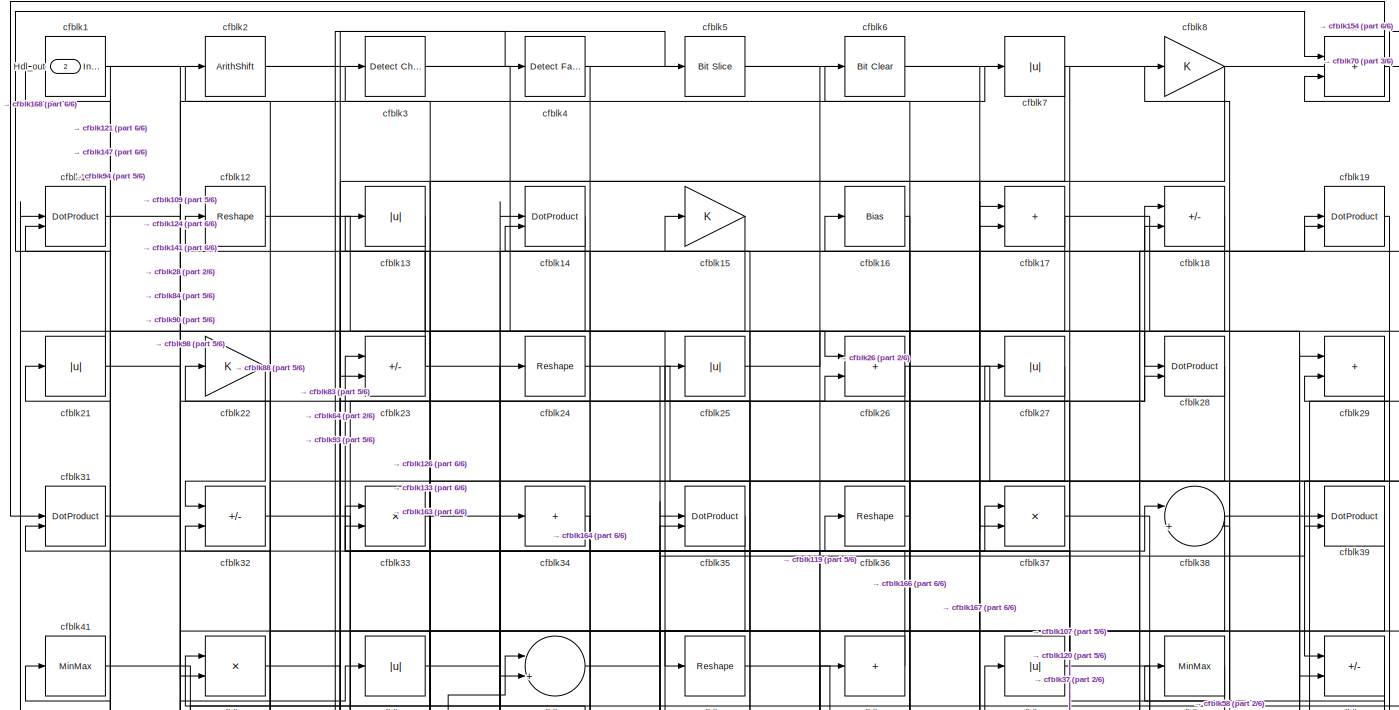
[diagram: root canvas - part 1/6, full width, top band]
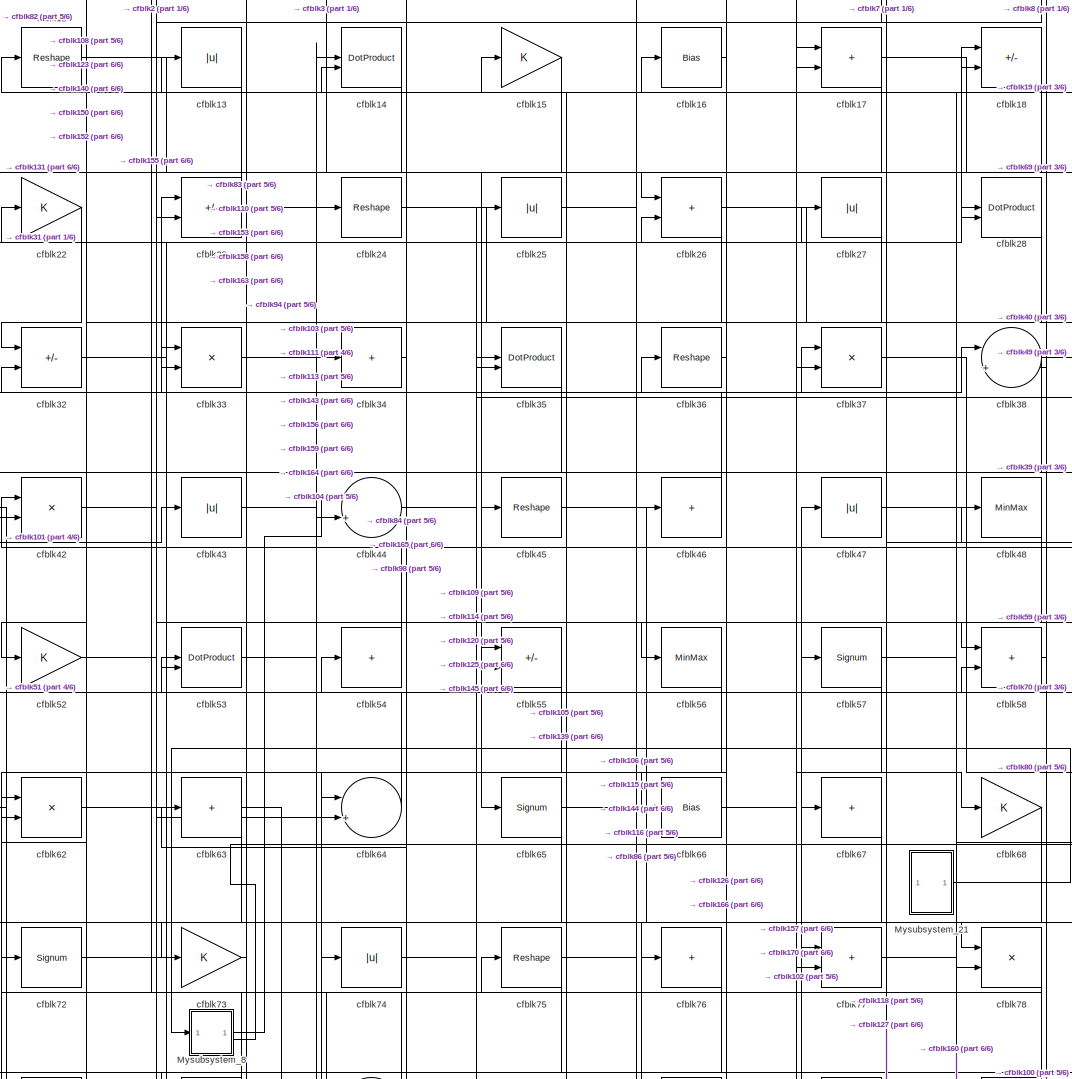
[diagram: root canvas - part 2/6, top center region]
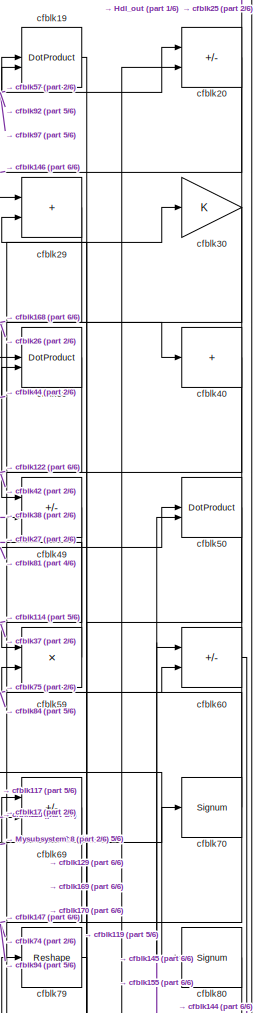
[diagram: root canvas - part 3/6, top right region]
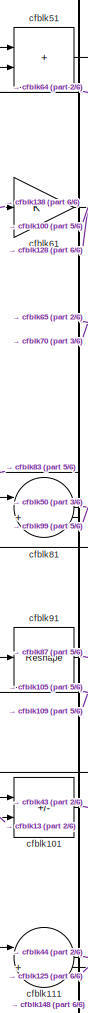
[diagram: root canvas - part 4/6, middle left region]
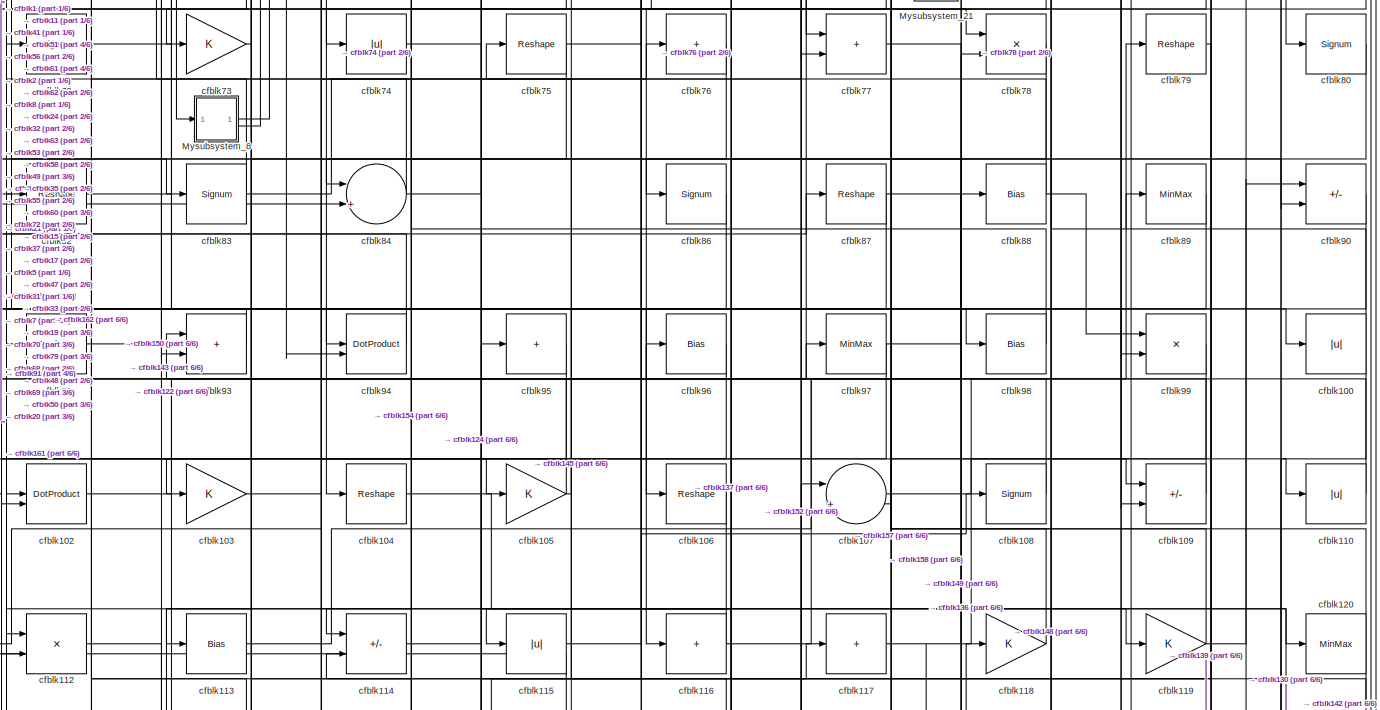
[diagram: root canvas - part 5/6, full width, middle band]
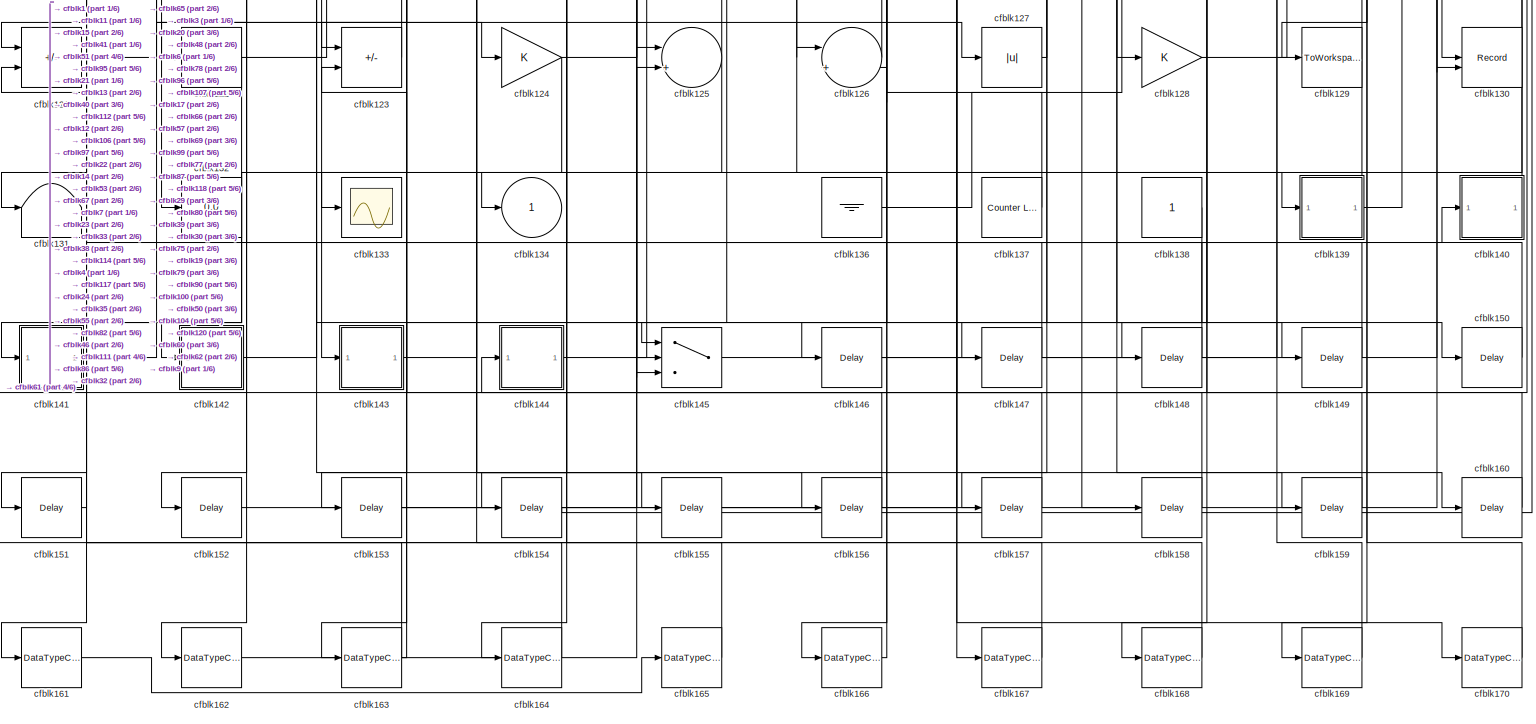
[diagram: root canvas - part 6/6, full width, bottom band]
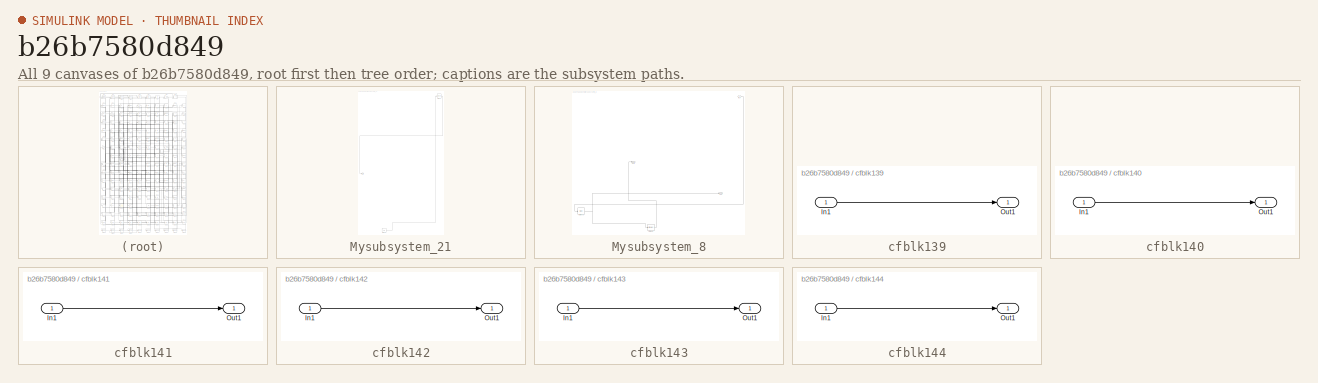
[diagram: thumbnail index - all 9 canvases of the model, root first then tree order]
MODEL slx_b26b7580d849
KIND model
CONFIG AbsTol = auto
CONFIG EnableMultiTasking = off
CONFIG FixedStep = auto
CONFIG MaxStep = auto
CONFIG MinStep = auto
CONFIG RelTol = 1e-3
CONFIG SampleTimeConstraint = Unconstrained
CONFIG SolverName = VariableStepAuto
CONFIG StartTime = 0.0
CONFIG StopTime = 10.0
BLOCK [Outport] Hdl_out
  OutDataTypeStr = uint8
  Port = 2
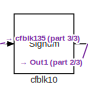
[diagram: Mysubsystem_21 - part 1/3, top right region]
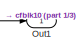
[diagram: Mysubsystem_21 - part 2/3, middle left region]
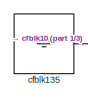
[diagram: Mysubsystem_21 - part 3/3, bottom left region]
BLOCK [SubSystem] Mysubsystem_21
  RTWFcnName = Mysubsystem_21
  RTWFcnNameOpts = User specified
  RTWFileNameOpts = Use function name
  RTWSystemCode = Reusable function
  TreatAsAtomicUnit = on
BLOCK [Outport] Mysubsystem_21/Out1
BLOCK [Signum] Mysubsystem_21/cfblk10
BLOCK [Ground] Mysubsystem_21/cfblk135
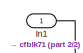
[diagram: Mysubsystem_8 - part 1/2, top right region]
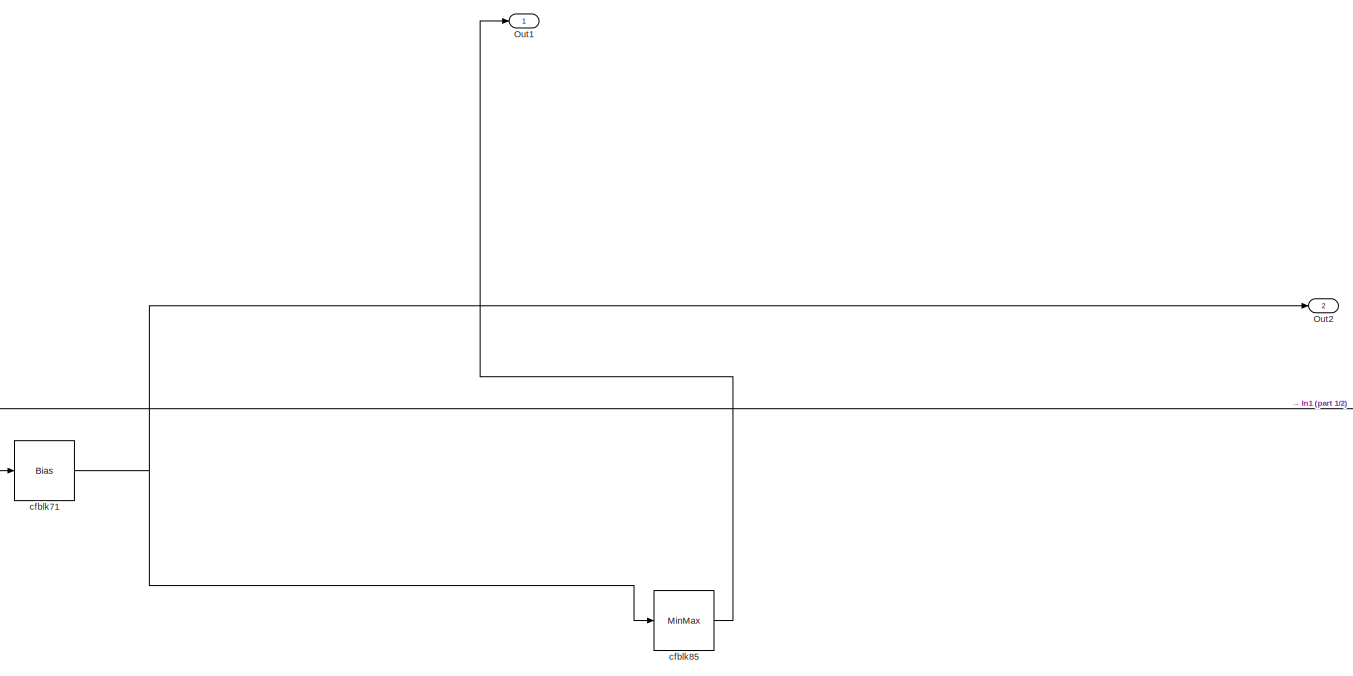
[diagram: Mysubsystem_8 - part 2/2, full width, bottom band]
BLOCK [SubSystem] Mysubsystem_8
  RTWFcnName = Mysubsystem_8
  RTWFcnNameOpts = User specified
  RTWFileNameOpts = Use function name
  RTWSystemCode = Reusable function
  TreatAsAtomicUnit = on
BLOCK [Inport] Mysubsystem_8/In1
BLOCK [Outport] Mysubsystem_8/Out1
BLOCK [Outport] Mysubsystem_8/Out2
  Port = 2
BLOCK [Bias] Mysubsystem_8/cfblk71
  Bias = 0.0
  SaturateOnIntegerOverflow = off
BLOCK [MinMax] Mysubsystem_8/cfblk85
BLOCK [Reference] cfblk1  REF=simulink/Logic and Bit
Operations/Detect
Increase
  LibrarySourceBlock = hdlsllib/Logic and Bit\nOperations/Detect\nIncrease
  SourceBlock = simulink/Logic and Bit\nOperations/Detect\nIncrease
  SourceType = Detect Increase
BLOCK [Abs] cfblk100
  OutDataTypeStr = uint8
  SaturateOnIntegerOverflow = off
BLOCK [Sum] cfblk101
  IconShape = rectangular
  Inputs = +-
  OutDataTypeStr = uint8
BLOCK [DotProduct] cfblk102
  OutDataTypeStr = uint8
BLOCK [Gain] cfblk103
  OutDataTypeStr = uint8
BLOCK [Reshape] cfblk104
BLOCK [Gain] cfblk105
  OutDataTypeStr = uint8
BLOCK [Reshape] cfblk106
BLOCK [Sum] cfblk107
  Inputs = |++
  OutDataTypeStr = uint8
BLOCK [Signum] cfblk108
BLOCK [Sum] cfblk109
  IconShape = rectangular
  Inputs = +-
  OutDataTypeStr = uint8
BLOCK [DotProduct] cfblk11
  OutDataTypeStr = uint8
BLOCK [Abs] cfblk110
  OutDataTypeStr = uint8
  SaturateOnIntegerOverflow = off
BLOCK [Sum] cfblk111
  Inputs = |++
  OutDataTypeStr = uint8
BLOCK [Product] cfblk112
  Inputs = */
  OutDataTypeStr = uint8
  RndMeth = Zero
  SaturateOnIntegerOverflow = on
BLOCK [Bias] cfblk113
  Bias = 0.0
  SaturateOnIntegerOverflow = off
BLOCK [Sum] cfblk114
  IconShape = rectangular
  Inputs = +-
  OutDataTypeStr = uint8
BLOCK [Abs] cfblk115
  OutDataTypeStr = uint8
  SaturateOnIntegerOverflow = off
BLOCK [Sum] cfblk116
  IconShape = rectangular
  Inputs = +
  OutDataTypeStr = uint8
BLOCK [Sum] cfblk117
  IconShape = rectangular
  Inputs = +
  OutDataTypeStr = uint8
BLOCK [Gain] cfblk118
  OutDataTypeStr = uint8
BLOCK [Gain] cfblk119
  OutDataTypeStr = uint8
BLOCK [Reshape] cfblk12
BLOCK [MinMax] cfblk120
  OutDataTypeStr = uint8
BLOCK [Sum] cfblk121
  IconShape = rectangular
  Inputs = +-
  OutDataTypeStr = uint8
BLOCK [Sum] cfblk122
  IconShape = rectangular
  Inputs = +
  OutDataTypeStr = uint8
BLOCK [Sum] cfblk123
  IconShape = rectangular
  Inputs = +-
  OutDataTypeStr = uint8
BLOCK [Gain] cfblk124
  OutDataTypeStr = uint8
BLOCK [Sum] cfblk125
  Inputs = |++
  OutDataTypeStr = uint8
BLOCK [Sum] cfblk126
  Inputs = |++
  OutDataTypeStr = uint8
BLOCK [Abs] cfblk127
  OutDataTypeStr = uint8
  SaturateOnIntegerOverflow = off
BLOCK [Gain] cfblk128
  OutDataTypeStr = uint8
BLOCK [ToWorkspace] cfblk129
  MaxDataPoints = inf
  SampleTime = -1
  SaveFormat = Timeseries
  VariableName = simout
BLOCK [Abs] cfblk13
  OutDataTypeStr = uint8
  SaturateOnIntegerOverflow = off
BLOCK [Record] cfblk130
  CompatibilityTag = XY
  FileSettingsInternal = {"entries":[{"content":{"excelSettings":{"content":{},"type":"Streamout.ExcelSettings"}},"type":"Streamout.FileSettingStorage","uuid":""}],"packageUris":["http:\/\/schema.mathworks.com\/mf0\/streamout_blocks\/R2020a"],"version":"1.0"}
  Layout = [1 1]
  SignalsInternal = {"entries":[{"content":{"signals":[{"content":{"blockPath":[],"dimensions":[1],"domain":"","lineColor":"#a2142f","plots":[1],"port":1,"signalID":35386,"signalName":"cfblk104"},"type":"RecordBlkView.Signal","uuid":""},{"content":{"blockPath":[],"dimensions":[1],"domain":"","lineColor":"#139fff","plots":[1],"port":2,"signalID":35389,"signalName":"cfblk100"},"type":"RecordBlkView.Signal","uuid":""}]}...<+144ch>
  VisualizationBindings = {"xyplotplugin":{"info":[{"series":[{"bindingParametersList":[{"parameter":"X-Axis","signalID":35386,"signalName":"cfblk104"},{"parameter":"Y-Axis","signalID":35389,"signalName":"cfblk100"}],"seriesID":47737}],"subplotID":1}]}}
  st = -1
BLOCK [Terminator] cfblk131
BLOCK [Display] cfblk132
  Decimation = 1
BLOCK [Scope] cfblk133
  Floating = off
  NumInputPorts = 1
  ScopeSpecificationString = Simulink.scopes.TimeScopeBlockCfg('CurrentConfiguration', extmgr.ConfigurationSet(extmgr.Configuration('Core','General UI',true),extmgr.Configuration('Core','Source UI',true),extmgr.Configuration('Sources','WiredSimulink',true,'DataLoggingVariableName','ScopeData2','DataLoggingSaveFormat','Array','DataLoggingLimitDataPoints',true,'DataLoggingDecimation','1'),extmgr.Configuration('Visuals','Time Do...<+868ch>
BLOCK [Outport] cfblk134
  OutDataTypeStr = uint8
  VectorParamsAs1DForOutWhenUnconnected = off
BLOCK [Ground] cfblk136
BLOCK [Reference] cfblk137  REF=hdlsllib/Sources/Counter
Limited
  SourceBlock = hdlsllib/Sources/Counter\nLimited
  SourceType = Counter Limited
BLOCK [Constant] cfblk138
  OutDataTypeStr = uint8
  SampleTime = -1
BLOCK [SubSystem] cfblk139
  LibrarySourceBlock = hdlsllib/Ports &\nSubsystems/Subsystem
BLOCK [Inport] cfblk139/In1
BLOCK [Outport] cfblk139/Out1
BLOCK [DotProduct] cfblk14
  OutDataTypeStr = uint8
BLOCK [SubSystem] cfblk140
  LibrarySourceBlock = hdlsllib/Ports &\nSubsystems/Subsystem
BLOCK [Inport] cfblk140/In1
BLOCK [Outport] cfblk140/Out1
BLOCK [SubSystem] cfblk141
  LibrarySourceBlock = hdlsllib/Ports &\nSubsystems/Subsystem
BLOCK [Inport] cfblk141/In1
BLOCK [Outport] cfblk141/Out1
BLOCK [SubSystem] cfblk142
  LibrarySourceBlock = hdlsllib/Ports &\nSubsystems/Subsystem
BLOCK [Inport] cfblk142/In1
BLOCK [Outport] cfblk142/Out1
BLOCK [SubSystem] cfblk143
  LibrarySourceBlock = hdlsllib/Ports &\nSubsystems/Subsystem
BLOCK [Inport] cfblk143/In1
BLOCK [Outport] cfblk143/Out1
BLOCK [SubSystem] cfblk144
  LibrarySourceBlock = hdlsllib/Ports &\nSubsystems/Subsystem
BLOCK [Inport] cfblk144/In1
BLOCK [Outport] cfblk144/Out1
BLOCK [Switch] cfblk145
  InputSameDT = off
  OutDataTypeStr = uint8
  SaturateOnIntegerOverflow = off
BLOCK [Delay] cfblk146
  InputPortMap = u0
  SampleTime = 1
BLOCK [Delay] cfblk147
  InputPortMap = u0
  SampleTime = 1
BLOCK [Delay] cfblk148
  InputPortMap = u0
  SampleTime = 1
BLOCK [Delay] cfblk149
  InputPortMap = u0
  SampleTime = 1
BLOCK [Gain] cfblk15
  OutDataTypeStr = uint8
BLOCK [Delay] cfblk150
  InputPortMap = u0
  SampleTime = 1
BLOCK [Delay] cfblk151
  InputPortMap = u0
  SampleTime = 1
BLOCK [Delay] cfblk152
  InputPortMap = u0
  SampleTime = 1
BLOCK [Delay] cfblk153
  InputPortMap = u0
  SampleTime = 1
BLOCK [Delay] cfblk154
  InputPortMap = u0
  SampleTime = 1
BLOCK [Delay] cfblk155
  InputPortMap = u0
  SampleTime = 1
BLOCK [Delay] cfblk156
  InputPortMap = u0
  SampleTime = 1
BLOCK [Delay] cfblk157
  InputPortMap = u0
  SampleTime = 1
BLOCK [Delay] cfblk158
  InputPortMap = u0
  SampleTime = 1
BLOCK [Delay] cfblk159
  InputPortMap = u0
  SampleTime = 1
BLOCK [Bias] cfblk16
  Bias = 0.0
  SaturateOnIntegerOverflow = off
BLOCK [Delay] cfblk160
  InputPortMap = u0
  SampleTime = 1
BLOCK [DataTypeConversion] cfblk161
  OutDataTypeStr = uint8
  RndMeth = Floor
  SaturateOnIntegerOverflow = off
BLOCK [DataTypeConversion] cfblk162
  OutDataTypeStr = uint8
  RndMeth = Floor
  SaturateOnIntegerOverflow = off
BLOCK [DataTypeConversion] cfblk163
  OutDataTypeStr = uint8
  RndMeth = Floor
  SaturateOnIntegerOverflow = off
BLOCK [DataTypeConversion] cfblk164
  OutDataTypeStr = uint8
  RndMeth = Floor
  SaturateOnIntegerOverflow = off
BLOCK [DataTypeConversion] cfblk165
  OutDataTypeStr = uint8
  RndMeth = Floor
  SaturateOnIntegerOverflow = off
BLOCK [DataTypeConversion] cfblk166
  OutDataTypeStr = uint8
  RndMeth = Floor
  SaturateOnIntegerOverflow = off
BLOCK [DataTypeConversion] cfblk167
  OutDataTypeStr = uint8
  RndMeth = Floor
  SaturateOnIntegerOverflow = off
BLOCK [DataTypeConversion] cfblk168
  OutDataTypeStr = uint8
  RndMeth = Floor
  SaturateOnIntegerOverflow = off
BLOCK [DataTypeConversion] cfblk169
  OutDataTypeStr = uint8
  RndMeth = Floor
  SaturateOnIntegerOverflow = off
BLOCK [Sum] cfblk17
  IconShape = rectangular
  OutDataTypeStr = uint8
BLOCK [DataTypeConversion] cfblk170
  OutDataTypeStr = uint8
  RndMeth = Floor
  SaturateOnIntegerOverflow = off
BLOCK [Sum] cfblk18
  IconShape = rectangular
  Inputs = +-
  OutDataTypeStr = uint8
BLOCK [DotProduct] cfblk19
  OutDataTypeStr = uint8
BLOCK [ArithShift] cfblk2
  BitShiftNumber = 8
  InputPortMap = u0
BLOCK [Sum] cfblk20
  IconShape = rectangular
  Inputs = +-
  OutDataTypeStr = uint8
BLOCK [Abs] cfblk21
  OutDataTypeStr = uint8
  SaturateOnIntegerOverflow = off
BLOCK [Gain] cfblk22
  OutDataTypeStr = uint8
BLOCK [Sum] cfblk23
  IconShape = rectangular
  Inputs = +-
  OutDataTypeStr = uint8
BLOCK [Reshape] cfblk24
BLOCK [Abs] cfblk25
  OutDataTypeStr = uint8
  SaturateOnIntegerOverflow = off
BLOCK [Sum] cfblk26
  IconShape = rectangular
  OutDataTypeStr = uint8
BLOCK [Abs] cfblk27
  OutDataTypeStr = uint8
  SaturateOnIntegerOverflow = off
BLOCK [DotProduct] cfblk28
  OutDataTypeStr = uint8
BLOCK [Sum] cfblk29
  IconShape = rectangular
  OutDataTypeStr = uint8
BLOCK [Reference] cfblk3  REF=simulink/Logic and Bit
Operations/Detect
Change
  LibrarySourceBlock = hdlsllib/Logic and Bit\nOperations/Detect\nChange
  SourceBlock = simulink/Logic and Bit\nOperations/Detect\nChange
  SourceType = Detect Change
BLOCK [Gain] cfblk30
  OutDataTypeStr = uint8
BLOCK [DotProduct] cfblk31
  OutDataTypeStr = uint8
BLOCK [Sum] cfblk32
  IconShape = rectangular
  Inputs = +-
  OutDataTypeStr = uint8
BLOCK [Product] cfblk33
  Inputs = */
  OutDataTypeStr = uint8
  RndMeth = Zero
  SaturateOnIntegerOverflow = on
BLOCK [Sum] cfblk34
  IconShape = rectangular
  Inputs = +
  OutDataTypeStr = uint8
BLOCK [DotProduct] cfblk35
  OutDataTypeStr = uint8
BLOCK [Reshape] cfblk36
BLOCK [Product] cfblk37
  Inputs = */
  OutDataTypeStr = uint8
  RndMeth = Zero
  SaturateOnIntegerOverflow = on
BLOCK [Sum] cfblk38
  Inputs = |++
  OutDataTypeStr = uint8
BLOCK [DotProduct] cfblk39
  OutDataTypeStr = uint8
BLOCK [Reference] cfblk4  REF=hdlsllib/Logic and Bit
Operations/Detect Fall
Negative
  SourceBlock = hdlsllib/Logic and Bit\nOperations/Detect Fall\nNegative
  SourceType = Detect Fall Negative
BLOCK [Sum] cfblk40
  IconShape = rectangular
  Inputs = +
  OutDataTypeStr = uint8
BLOCK [MinMax] cfblk41
  OutDataTypeStr = uint8
BLOCK [Product] cfblk42
  Inputs = */
  OutDataTypeStr = uint8
  RndMeth = Zero
  SaturateOnIntegerOverflow = on
BLOCK [Abs] cfblk43
  OutDataTypeStr = uint8
  SaturateOnIntegerOverflow = off
BLOCK [Sum] cfblk44
  Inputs = |++
  OutDataTypeStr = uint8
BLOCK [Reshape] cfblk45
BLOCK [Sum] cfblk46
  IconShape = rectangular
  Inputs = +
  OutDataTypeStr = uint8
BLOCK [Abs] cfblk47
  OutDataTypeStr = uint8
  SaturateOnIntegerOverflow = off
BLOCK [MinMax] cfblk48
  OutDataTypeStr = uint8
BLOCK [Sum] cfblk49
  IconShape = rectangular
  Inputs = +-
  OutDataTypeStr = uint8
BLOCK [Reference] cfblk5  REF=hdlsllib/Logic and Bit
Operations/Bit Slice
  SourceBlock = hdlsllib/Logic and Bit\nOperations/Bit Slice
  SourceType = Bit Slice
BLOCK [DotProduct] cfblk50
  OutDataTypeStr = uint8
BLOCK [Sum] cfblk51
  IconShape = rectangular
  OutDataTypeStr = uint8
BLOCK [Gain] cfblk52
  OutDataTypeStr = uint8
BLOCK [DotProduct] cfblk53
  OutDataTypeStr = uint8
BLOCK [Sum] cfblk54
  IconShape = rectangular
  Inputs = +
  OutDataTypeStr = uint8
BLOCK [Sum] cfblk55
  IconShape = rectangular
  Inputs = +-
  OutDataTypeStr = uint8
BLOCK [MinMax] cfblk56
  OutDataTypeStr = uint8
BLOCK [Signum] cfblk57
BLOCK [Sum] cfblk58
  IconShape = rectangular
  OutDataTypeStr = uint8
BLOCK [Product] cfblk59
  Inputs = */
  OutDataTypeStr = uint8
  RndMeth = Zero
  SaturateOnIntegerOverflow = on
BLOCK [Reference] cfblk6  REF=simulink/Logic and Bit
Operations/Bit Clear
  LibrarySourceBlock = hdlsllib/Logic and Bit\nOperations/Bit Clear
  SourceBlock = simulink/Logic and Bit\nOperations/Bit Clear
  SourceType = Bit Clear
BLOCK [Sum] cfblk60
  IconShape = rectangular
  Inputs = +-
  OutDataTypeStr = uint8
BLOCK [Gain] cfblk61
  OutDataTypeStr = uint8
BLOCK [Product] cfblk62
  Inputs = */
  OutDataTypeStr = uint8
  RndMeth = Zero
  SaturateOnIntegerOverflow = on
BLOCK [Sum] cfblk63
  IconShape = rectangular
  Inputs = +
  OutDataTypeStr = uint8
BLOCK [Sum] cfblk64
  Inputs = |++
  OutDataTypeStr = uint8
BLOCK [Signum] cfblk65
BLOCK [Bias] cfblk66
  Bias = 0.0
  SaturateOnIntegerOverflow = off
BLOCK [Sum] cfblk67
  IconShape = rectangular
  Inputs = +
  OutDataTypeStr = uint8
BLOCK [Gain] cfblk68
  OutDataTypeStr = uint8
BLOCK [Sum] cfblk69
  IconShape = rectangular
  Inputs = +-
  OutDataTypeStr = uint8
BLOCK [Abs] cfblk7
  OutDataTypeStr = uint8
  SaturateOnIntegerOverflow = off
BLOCK [Signum] cfblk70
BLOCK [Signum] cfblk72
BLOCK [Gain] cfblk73
  OutDataTypeStr = uint8
BLOCK [Abs] cfblk74
  OutDataTypeStr = uint8
  SaturateOnIntegerOverflow = off
BLOCK [Reshape] cfblk75
BLOCK [Sum] cfblk76
  IconShape = rectangular
  Inputs = +
  OutDataTypeStr = uint8
BLOCK [Sum] cfblk77
  IconShape = rectangular
  OutDataTypeStr = uint8
BLOCK [Product] cfblk78
  Inputs = */
  OutDataTypeStr = uint8
  RndMeth = Zero
  SaturateOnIntegerOverflow = on
BLOCK [Reshape] cfblk79
BLOCK [Gain] cfblk8
  OutDataTypeStr = uint8
BLOCK [Signum] cfblk80
BLOCK [Sum] cfblk81
  Inputs = |++
  OutDataTypeStr = uint8
BLOCK [Reshape] cfblk82
BLOCK [Signum] cfblk83
BLOCK [Sum] cfblk84
  Inputs = |++
  OutDataTypeStr = uint8
BLOCK [Signum] cfblk86
BLOCK [Reshape] cfblk87
BLOCK [Bias] cfblk88
  Bias = 0.0
  SaturateOnIntegerOverflow = off
BLOCK [MinMax] cfblk89
  OutDataTypeStr = uint8
BLOCK [Sum] cfblk9
  IconShape = rectangular
  OutDataTypeStr = uint8
BLOCK [Sum] cfblk90
  IconShape = rectangular
  Inputs = +-
  OutDataTypeStr = uint8
BLOCK [Reshape] cfblk91
BLOCK [Reshape] cfblk92
BLOCK [Sum] cfblk93
  IconShape = rectangular
  OutDataTypeStr = uint8
BLOCK [DotProduct] cfblk94
  OutDataTypeStr = uint8
BLOCK [Sum] cfblk95
  IconShape = rectangular
  Inputs = +
  OutDataTypeStr = uint8
BLOCK [Bias] cfblk96
  Bias = 0.0
  SaturateOnIntegerOverflow = off
BLOCK [MinMax] cfblk97
  OutDataTypeStr = uint8
BLOCK [Bias] cfblk98
  Bias = 0.0
  SaturateOnIntegerOverflow = off
BLOCK [Product] cfblk99
  Inputs = */
  OutDataTypeStr = uint8
  RndMeth = Zero
  SaturateOnIntegerOverflow = on
LINE Mysubsystem_21/cfblk10:1 -> Mysubsystem_21/Out1:1
LINE Mysubsystem_21/cfblk135:1 -> Mysubsystem_21/cfblk10:1
LINE Mysubsystem_21:1 -> Mysubsystem_8:1
LINE Mysubsystem_8/In1:1 -> Mysubsystem_8/cfblk71:1
NET Mysubsystem_8/cfblk71:1 -> Mysubsystem_8/Out2:1, Mysubsystem_8/cfblk85:1
LINE Mysubsystem_8/cfblk85:1 -> Mysubsystem_8/Out1:1
LINE Mysubsystem_8:1 -> cfblk44:1
LINE Mysubsystem_8:2 -> cfblk69:1
NET cfblk100:1 -> cfblk130:2, cfblk48:1, cfblk89:1
LINE cfblk101:1 -> cfblk43:1
LINE cfblk102:1 -> cfblk47:1
LINE cfblk103:1 -> cfblk76:1
LINE cfblk104:1 -> cfblk130:1
NET cfblk105:1 -> cfblk15:1, cfblk81:1
LINE cfblk106:1 -> cfblk143:1
LINE cfblk107:1 -> cfblk110:1
LINE cfblk108:1 -> cfblk62:2
LINE cfblk109:1 -> cfblk91:1
LINE cfblk110:1 -> cfblk53:1
LINE cfblk111:1 -> cfblk44:2
LINE cfblk112:1 -> cfblk150:1
NET cfblk113:1 -> cfblk58:2, cfblk88:1
LINE cfblk114:1 -> cfblk35:2
NET cfblk115:1 -> cfblk108:1, cfblk37:1
NET cfblk116:1 -> cfblk112:1, cfblk78:2
NET cfblk117:1 -> cfblk158:1, cfblk70:1, cfblk79:1
LINE cfblk118:1 -> cfblk33:1
NET cfblk119:1 -> cfblk20:2, cfblk93:1
LINE cfblk11:1 -> cfblk109:1
NET cfblk120:1 -> cfblk142:1, cfblk31:2
LINE cfblk121:1 -> cfblk127:1
NET cfblk122:1 -> cfblk151:1, cfblk97:1
LINE cfblk123:1 -> cfblk22:1
NET cfblk124:1 -> cfblk117:1, cfblk134:1
NET cfblk125:1 -> cfblk111:2, cfblk141:1
LINE cfblk126:1 -> cfblk3:1
LINE cfblk127:1 -> cfblk57:1
LINE cfblk128:1 -> cfblk30:1
NET cfblk12:1 -> cfblk155:1, cfblk65:1
LINE cfblk136:1 -> cfblk118:1
LINE cfblk137:1 -> cfblk96:1
LINE cfblk138:1 -> cfblk61:1
LINE cfblk139/In1:1 -> cfblk139/Out1:1
NET cfblk139:1 -> cfblk75:1, cfblk90:1
NET cfblk13:1 -> cfblk101:2, cfblk152:1
LINE cfblk140/In1:1 -> cfblk140/Out1:1
LINE cfblk140:1 -> cfblk62:1
LINE cfblk141/In1:1 -> cfblk141/Out1:1
LINE cfblk141:1 -> cfblk7:1
LINE cfblk142/In1:1 -> cfblk142/Out1:1
LINE cfblk142:1 -> cfblk140:1
LINE cfblk143/In1:1 -> cfblk143/Out1:1
LINE cfblk143:1 -> cfblk38:1
LINE cfblk144/In1:1 -> cfblk144/Out1:1
LINE cfblk144:1 -> cfblk46:1
LINE cfblk145:1 -> cfblk50:2
LINE cfblk146:1 -> cfblk39:1
LINE cfblk147:1 -> cfblk1:1
LINE cfblk148:1 -> cfblk51:2
LINE cfblk149:1 -> cfblk114:2
LINE cfblk14:1 -> cfblk163:1
LINE cfblk150:1 -> cfblk32:2
LINE cfblk151:1 -> cfblk121:2
LINE cfblk152:1 -> cfblk107:1
LINE cfblk153:1 -> cfblk125:2
LINE cfblk154:1 -> cfblk9:2
LINE cfblk155:1 -> cfblk60:1
LINE cfblk156:1 -> cfblk123:2
LINE cfblk157:1 -> cfblk17:1
LINE cfblk158:1 -> cfblk53:2
LINE cfblk159:1 -> cfblk38:2
NET cfblk15:1 -> cfblk131:1, cfblk23:2
LINE cfblk160:1 -> cfblk35:1
LINE cfblk161:1 -> cfblk165:1
LINE cfblk162:1 -> cfblk95:1
NET cfblk163:1 -> cfblk33:2, cfblk41:1
LINE cfblk164:1 -> cfblk14:1
LINE cfblk165:1 -> cfblk14:2
LINE cfblk166:1 -> cfblk6:1
LINE cfblk167:1 -> cfblk11:2
LINE cfblk168:1 -> cfblk11:1
LINE cfblk169:1 -> cfblk29:1
LINE cfblk16:1 -> cfblk66:1
LINE cfblk170:1 -> cfblk29:2
NET cfblk17:1 -> cfblk103:1, cfblk69:2
LINE cfblk18:1 -> cfblk45:1
LINE cfblk19:1 -> cfblk169:1
NET cfblk1:1 -> cfblk121:1, cfblk84:2
LINE cfblk20:1 -> cfblk146:1
NET cfblk21:1 -> cfblk124:1, cfblk9:1
LINE cfblk22:1 -> cfblk32:1
NET cfblk23:1 -> cfblk12:1, cfblk156:1
NET cfblk24:1 -> cfblk109:2, cfblk125:1
LINE cfblk25:1 -> cfblk28:1
NET cfblk26:1 -> cfblk40:1, cfblk73:1
LINE cfblk27:1 -> cfblk52:1
LINE cfblk28:1 -> cfblk56:1
LINE cfblk29:1 -> cfblk168:1
NET cfblk2:1 -> cfblk4:1, cfblk64:2
LINE cfblk30:1 -> cfblk49:1
NET cfblk31:1 -> cfblk28:2, cfblk90:2
NET cfblk32:1 -> cfblk106:1, cfblk126:1
NET cfblk33:1 -> cfblk105:1, cfblk159:1, cfblk55:1, cfblk77:2
LINE cfblk34:1 -> cfblk64:1
LINE cfblk35:1 -> cfblk113:1
LINE cfblk36:1 -> cfblk16:1
LINE cfblk37:1 -> cfblk59:1
NET cfblk38:1 -> cfblk49:2, cfblk55:2
LINE cfblk39:1 -> cfblk42:2
LINE cfblk3:1 -> cfblk26:1
LINE cfblk40:1 -> cfblk122:1
LINE cfblk41:1 -> cfblk98:1
LINE cfblk42:1 -> cfblk58:1
LINE cfblk43:1 -> cfblk18:2
LINE cfblk44:1 -> cfblk39:2
LINE cfblk45:1 -> cfblk78:1
LINE cfblk46:1 -> cfblk23:1
LINE cfblk47:1 -> cfblk80:1
NET cfblk48:1 -> cfblk126:2, cfblk77:1
LINE cfblk49:1 -> cfblk114:1
LINE cfblk4:1 -> cfblk164:1
LINE cfblk50:1 -> cfblk115:1
NET cfblk51:1 -> cfblk111:1, cfblk83:1
LINE cfblk52:1 -> cfblk26:2
LINE cfblk53:1 -> cfblk34:1
LINE cfblk54:1 -> cfblk42:1
NET cfblk55:1 -> cfblk104:1, cfblk145:2
LINE cfblk56:1 -> cfblk102:1
NET cfblk57:1 -> cfblk19:2, cfblk67:1
LINE cfblk58:1 -> cfblk8:1
LINE cfblk59:1 -> cfblk27:1
LINE cfblk5:1 -> cfblk119:1
LINE cfblk60:1 -> cfblk144:1
NET cfblk61:1 -> cfblk100:1, cfblk128:1
NET cfblk62:1 -> cfblk18:1, cfblk54:1
NET cfblk63:1 -> cfblk82:1, cfblk94:2
LINE cfblk64:1 -> cfblk51:1
NET cfblk65:1 -> cfblk101:1, cfblk139:1
NET cfblk66:1 -> cfblk170:1, cfblk68:1
LINE cfblk67:1 -> cfblk123:1
LINE cfblk68:1 -> cfblk116:1
NET cfblk69:1 -> cfblk147:1, cfblk94:1
LINE cfblk6:1 -> cfblk167:1
NET cfblk70:1 -> Hdl_out:1, cfblk25:1, cfblk74:1, cfblk81:2
LINE cfblk72:1 -> cfblk36:1
LINE cfblk73:1 -> cfblk13:1
LINE cfblk74:1 -> cfblk120:1
NET cfblk75:1 -> cfblk153:1, cfblk59:2
LINE cfblk76:1 -> cfblk86:1
LINE cfblk77:1 -> cfblk160:1
LINE cfblk78:1 -> cfblk166:1
LINE cfblk79:1 -> cfblk129:1
NET cfblk7:1 -> cfblk107:2, cfblk133:1, cfblk37:2
NET cfblk80:1 -> cfblk148:1, cfblk84:1
NET cfblk81:1 -> cfblk50:1, cfblk99:2
NET cfblk82:1 -> cfblk145:3, cfblk24:1
NET cfblk83:1 -> cfblk17:2, cfblk5:1
NET cfblk84:1 -> cfblk60:2, cfblk72:1
LINE cfblk86:1 -> cfblk145:1
NET cfblk87:1 -> cfblk132:1, cfblk149:1
NET cfblk88:1 -> cfblk2:1, cfblk99:1
LINE cfblk89:1 -> cfblk102:2
LINE cfblk8:1 -> cfblk93:2
LINE cfblk90:1 -> cfblk154:1
LINE cfblk91:1 -> cfblk87:1
LINE cfblk92:1 -> cfblk20:1
LINE cfblk93:1 -> cfblk92:1
LINE cfblk94:1 -> cfblk21:1
LINE cfblk95:1 -> cfblk161:1
LINE cfblk96:1 -> cfblk162:1
NET cfblk97:1 -> cfblk112:2, cfblk19:1
LINE cfblk98:1 -> cfblk63:1
LINE cfblk99:1 -> cfblk157:1
LINE cfblk9:1 -> cfblk31:1
note: NET lines group one-source signal fan-out (src -> all destinations, sorted); 1:1 wires keep LINE
